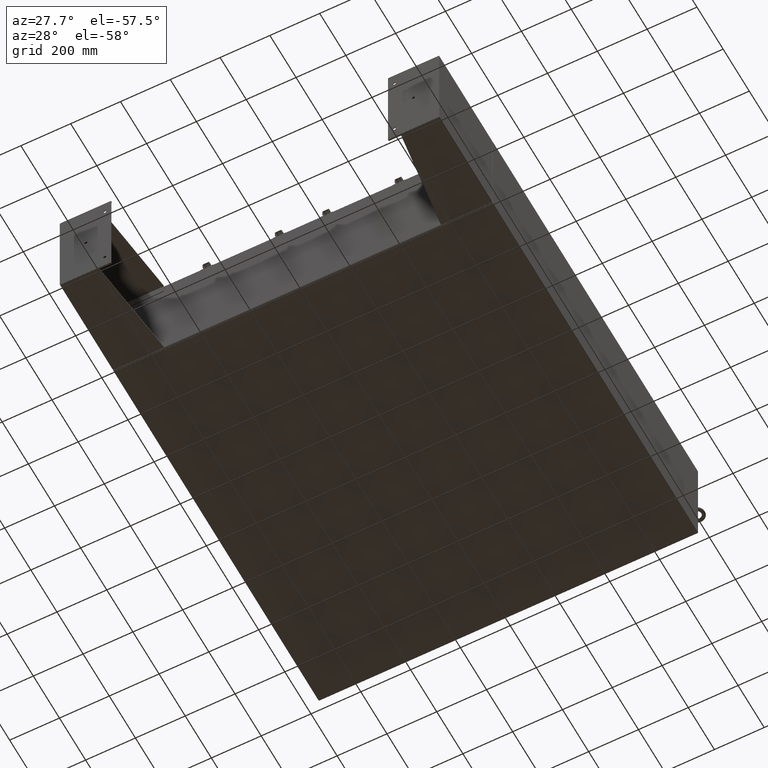
[diagram: clean part render]
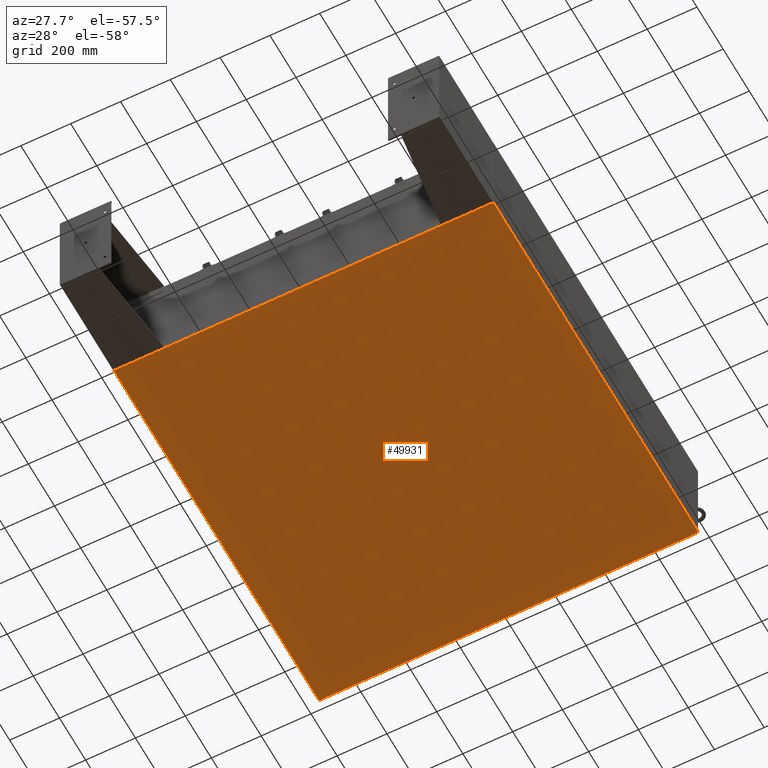
[diagram: same view with one face highlighted and labeled with its STEP entity id]
A machine part, auxiliary view. The second image highlights one B-rep face of the part: STEP entity #49931.
In plain terms, the highlighted planar face has unit normal (0, 0, -1).
Its self-contained STEP definition (entity closure, byte-faithful):
#3801 = PLANE ( 'NONE',  #34454 ) ;
#4811 = ORIENTED_EDGE ( 'NONE', *, *, #58488, .T. ) ;
#6240 = CARTESIAN_POINT ( 'NONE',  ( -29.91230000000001300, -30.92530000000000400, -0.07469999999999994700 ) ) ;
#8980 = DIRECTION ( 'NONE',  ( 0.0000000000000000000, 0.0000000000000000000, -1.000000000000000000 ) ) ;
#9226 = DIRECTION ( 'NONE',  ( -1.000000000000000000, 0.0000000000000000000, -0.0000000000000000000 ) ) ;
#13094 = VERTEX_POINT ( 'NONE', #66831 ) ;
#15645 = DIRECTION ( 'NONE',  ( -1.000000000000000000, -0.0000000000000000000, -0.0000000000000000000 ) ) ;
#16056 = CARTESIAN_POINT ( 'NONE',  ( 29.91229999999999100, -30.92530000000000400, -0.07470000000000000300 ) ) ;
#16327 = CARTESIAN_POINT ( 'NONE',  ( 29.91229999999999800, 30.92529999999999300, -0.07469999999999994700 ) ) ;
#17879 = VECTOR ( 'NONE', #53093, 39.37007874015748100 ) ;
#18938 = VECTOR ( 'NONE', #24049, 39.37007874015748100 ) ;
#19093 = EDGE_CURVE ( 'NONE', #45929, #27210, #33307, .T. ) ;
#19176 = ORIENTED_EDGE ( 'NONE', *, *, #21517, .F. ) ;
#21517 = EDGE_CURVE ( 'NONE', #45929, #21773, #49924, .T. ) ;
#21773 = VERTEX_POINT ( 'NONE', #16056 ) ;
#21914 = EDGE_LOOP ( 'NONE', ( #19176, #61372, #26709, #4811 ) ) ;
#24049 = DIRECTION ( 'NONE',  ( -0.0000000000000000000, 1.000000000000000000, -0.0000000000000000000 ) ) ;
#26296 = CARTESIAN_POINT ( 'NONE',  ( -30.00000000000001100, -30.92530000000000400, -0.07470000000000000300 ) ) ;
#26709 = ORIENTED_EDGE ( 'NONE', *, *, #36385, .F. ) ;
#27210 = VERTEX_POINT ( 'NONE', #44180 ) ;
#29202 = VECTOR ( 'NONE', #15645, 39.37007874015748100 ) ;
#30656 = CARTESIAN_POINT ( 'NONE',  ( 0.0000000000000000000, 0.0000000000000000000, -0.07470000000000000300 ) ) ;
#32580 = DIRECTION ( 'NONE',  ( -0.0000000000000000000, -1.000000000000000000, -0.0000000000000000000 ) ) ;
#33307 = LINE ( 'NONE', #40292, #18938 ) ;
#34454 = AXIS2_PLACEMENT_3D ( 'NONE', #30656, #8980, #9226 ) ;
#36385 = EDGE_CURVE ( 'NONE', #13094, #27210, #43577, .T. ) ;
#40292 = CARTESIAN_POINT ( 'NONE',  ( -29.91230000000001300, -30.92530000000000400, -0.07469999999999994700 ) ) ;
#43577 = LINE ( 'NONE', #63868, #29202 ) ;
#44180 = CARTESIAN_POINT ( 'NONE',  ( -29.91230000000001300, 30.92529999999999300, -0.07470000000000000300 ) ) ;
#44298 = FACE_OUTER_BOUND ( 'NONE', #21914, .T. ) ;
#45929 = VERTEX_POINT ( 'NONE', #6240 ) ;
#46210 = VECTOR ( 'NONE', #32580, 39.37007874015748100 ) ;
#49589 = LINE ( 'NONE', #16327, #46210 ) ;
#49924 = LINE ( 'NONE', #26296, #17879 ) ;
#49931 = ADVANCED_FACE ( 'NONE', ( #44298 ), #3801, .T. ) ;
#53093 = DIRECTION ( 'NONE',  ( 1.000000000000000000, 0.0000000000000000000, 0.0000000000000000000 ) ) ;
#58488 = EDGE_CURVE ( 'NONE', #13094, #21773, #49589, .T. ) ;
#61372 = ORIENTED_EDGE ( 'NONE', *, *, #19093, .T. ) ;
#63868 = CARTESIAN_POINT ( 'NONE',  ( -30.00000000000001100, 30.92529999999999300, -0.07470000000000000300 ) ) ;
#66831 = CARTESIAN_POINT ( 'NONE',  ( 29.91229999999999800, 30.92529999999999300, -0.07469999999999994700 ) ) ;